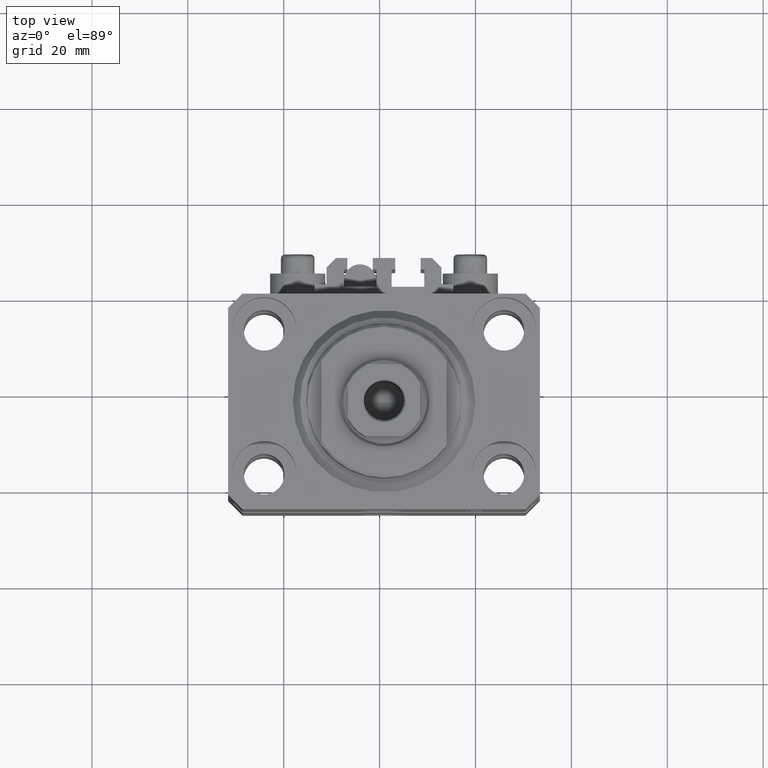
[diagram: clean part render]
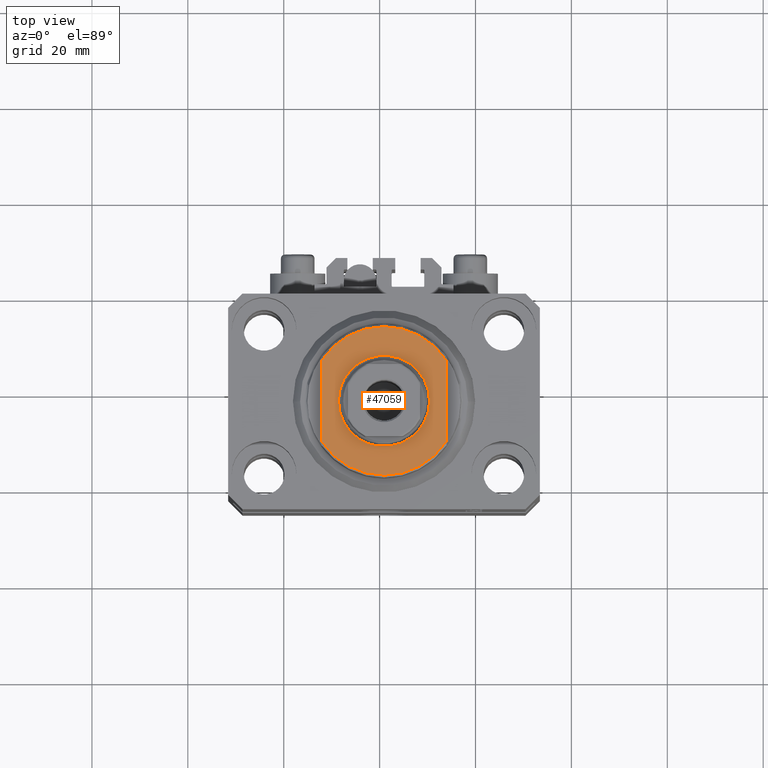
[diagram: same view with one face highlighted and labeled with its STEP entity id]
A machine part, top view. The second image highlights one B-rep face of the part: STEP entity #47059.
In plain terms, the highlighted planar face has unit normal (0, 0, 1).
Its self-contained STEP definition (entity closure, byte-faithful):
#257 = EDGE_CURVE ( 'NONE', #12782, #36942, #1539, .T. ) ;
#1539 = CIRCLE ( 'NONE', #35558, 15.50000000000003730 ) ;
#1990 = CARTESIAN_POINT ( 'NONE',  ( 0.000000000000000000, 0.000000000000000000, -6.500000000000000000 ) ) ;
#2602 = VERTEX_POINT ( 'NONE', #12962 ) ;
#5003 = ORIENTED_EDGE ( 'NONE', *, *, #46863, .F. ) ;
#5687 = CARTESIAN_POINT ( 'NONE',  ( 0.000000000000000000, 0.000000000000000000, -6.500000000000000000 ) ) ;
#6074 = EDGE_CURVE ( 'NONE', #43958, #12782, #43001, .T. ) ;
#6376 = CARTESIAN_POINT ( 'NONE',  ( 0.000000000000000000, 0.000000000000000000, -6.500000000000000000 ) ) ;
#6609 = DIRECTION ( 'NONE',  ( 0.000000000000000000, -1.000000000000000000, -0.000000000000000000 ) ) ;
#8329 = DIRECTION ( 'NONE',  ( -0.000000000000000000, -1.000000000000000000, -0.000000000000000000 ) ) ;
#8636 = EDGE_CURVE ( 'NONE', #24398, #33865, #38302, .T. ) ;
#8918 = CARTESIAN_POINT ( 'NONE',  ( 0.000000000000000000, 0.000000000000000000, -6.500000000000000000 ) ) ;
#12195 = EDGE_LOOP ( 'NONE', ( #40477, #12374, #35513, #5003 ) ) ;
#12374 = ORIENTED_EDGE ( 'NONE', *, *, #6074, .T. ) ;
#12661 = DIRECTION ( 'NONE',  ( 0.000000000000000000, 0.000000000000000000, -1.000000000000000000 ) ) ;
#12782 = VERTEX_POINT ( 'NONE', #20137 ) ;
#12962 = CARTESIAN_POINT ( 'NONE',  ( -13.00000000000000000, 8.440971508067139695, -6.500000000000000000 ) ) ;
#13791 = AXIS2_PLACEMENT_3D ( 'NONE', #5687, #37925, #45233 ) ;
#15372 = CARTESIAN_POINT ( 'NONE',  ( -13.00000000000000000, -8.440971508067139695, -6.500000000000000000 ) ) ;
#15810 = VECTOR ( 'NONE', #6609, 1000.000000000000000 ) ;
#17041 = FACE_BOUND ( 'NONE', #21474, .T. ) ;
#17281 = DIRECTION ( 'NONE',  ( -1.000000000000000000, 0.000000000000000000, -0.000000000000000000 ) ) ;
#18625 = EDGE_CURVE ( 'NONE', #2602, #43958, #42430, .T. ) ;
#20137 = CARTESIAN_POINT ( 'NONE',  ( 13.00000000000000000, -8.440971508067139695, -6.500000000000000000 ) ) ;
#20975 = ORIENTED_EDGE ( 'NONE', *, *, #34091, .T. ) ;
#21464 = DIRECTION ( 'NONE',  ( -0.000000000000000000, -0.000000000000000000, 1.000000000000000000 ) ) ;
#21474 = EDGE_LOOP ( 'NONE', ( #42825, #20975 ) ) ;
#21616 = CARTESIAN_POINT ( 'NONE',  ( 13.00000000000000000, 8.440971508067139695, -6.500000000000000000 ) ) ;
#22700 = AXIS2_PLACEMENT_3D ( 'NONE', #6376, #42277, #17281 ) ;
#23371 = LINE ( 'NONE', #26267, #37376 ) ;
#24398 = VERTEX_POINT ( 'NONE', #47527 ) ;
#26267 = CARTESIAN_POINT ( 'NONE',  ( -13.00000000000000000, -43.08131845707602992, -6.500000000000000000 ) ) ;
#27467 = PLANE ( 'NONE',  #22700 ) ;
#28905 = CARTESIAN_POINT ( 'NONE',  ( 13.00000000000000000, -43.08131845707602992, -6.500000000000000000 ) ) ;
#30728 = DIRECTION ( 'NONE',  ( -0.000000000000000000, -0.000000000000000000, 1.000000000000000000 ) ) ;
#31827 = FACE_OUTER_BOUND ( 'NONE', #12195, .T. ) ;
#33865 = VERTEX_POINT ( 'NONE', #45849 ) ;
#34091 = EDGE_CURVE ( 'NONE', #33865, #24398, #43306, .T. ) ;
#34755 = AXIS2_PLACEMENT_3D ( 'NONE', #8918, #30728, #41651 ) ;
#35513 = ORIENTED_EDGE ( 'NONE', *, *, #257, .T. ) ;
#35558 = AXIS2_PLACEMENT_3D ( 'NONE', #1990, #12661, #38585 ) ;
#36942 = VERTEX_POINT ( 'NONE', #15372 ) ;
#37376 = VECTOR ( 'NONE', #8329, 1000.000000000000000 ) ;
#37925 = DIRECTION ( 'NONE',  ( 0.000000000000000000, 0.000000000000000000, -1.000000000000000000 ) ) ;
#38302 = CIRCLE ( 'NONE', #42998, 9.500000000000015987 ) ;
#38585 = DIRECTION ( 'NONE',  ( -1.000000000000000000, 0.000000000000000000, 0.000000000000000000 ) ) ;
#40477 = ORIENTED_EDGE ( 'NONE', *, *, #18625, .T. ) ;
#41651 = DIRECTION ( 'NONE',  ( -1.000000000000000000, 0.000000000000000000, 0.000000000000000000 ) ) ;
#42277 = DIRECTION ( 'NONE',  ( 0.000000000000000000, 0.000000000000000000, -1.000000000000000000 ) ) ;
#42430 = CIRCLE ( 'NONE', #13791, 15.50000000000003730 ) ;
#42825 = ORIENTED_EDGE ( 'NONE', *, *, #8636, .T. ) ;
#42998 = AXIS2_PLACEMENT_3D ( 'NONE', #46459, #21464, #46946 ) ;
#43001 = LINE ( 'NONE', #28905, #15810 ) ;
#43306 = CIRCLE ( 'NONE', #34755, 9.500000000000015987 ) ;
#43958 = VERTEX_POINT ( 'NONE', #21616 ) ;
#45233 = DIRECTION ( 'NONE',  ( -1.000000000000000000, 0.000000000000000000, 0.000000000000000000 ) ) ;
#45849 = CARTESIAN_POINT ( 'NONE',  ( 9.500000000000015987, 1.163414459189987457E-15, -6.500000000000000000 ) ) ;
#46459 = CARTESIAN_POINT ( 'NONE',  ( 0.000000000000000000, 0.000000000000000000, -6.500000000000000000 ) ) ;
#46863 = EDGE_CURVE ( 'NONE', #2602, #36942, #23371, .T. ) ;
#46946 = DIRECTION ( 'NONE',  ( -1.000000000000000000, 0.000000000000000000, 0.000000000000000000 ) ) ;
#47059 = ADVANCED_FACE ( 'NONE', ( #17041, #31827 ), #27467, .T. ) ;
#47527 = CARTESIAN_POINT ( 'NONE',  ( -9.500000000000015987, 0.000000000000000000, -6.500000000000000000 ) ) ;